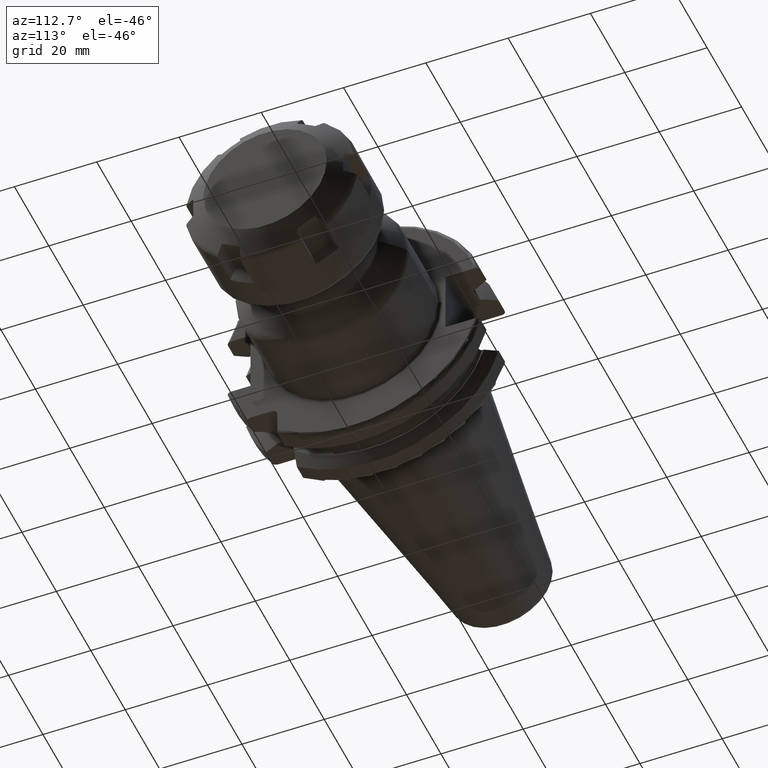
[diagram: clean part render]
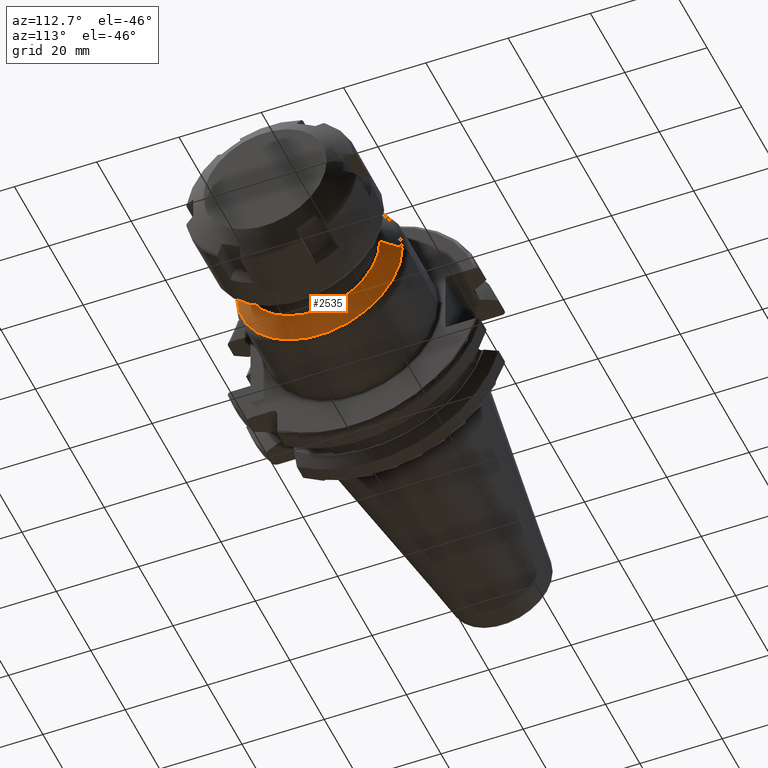
[diagram: same view with one face highlighted and labeled with its STEP entity id]
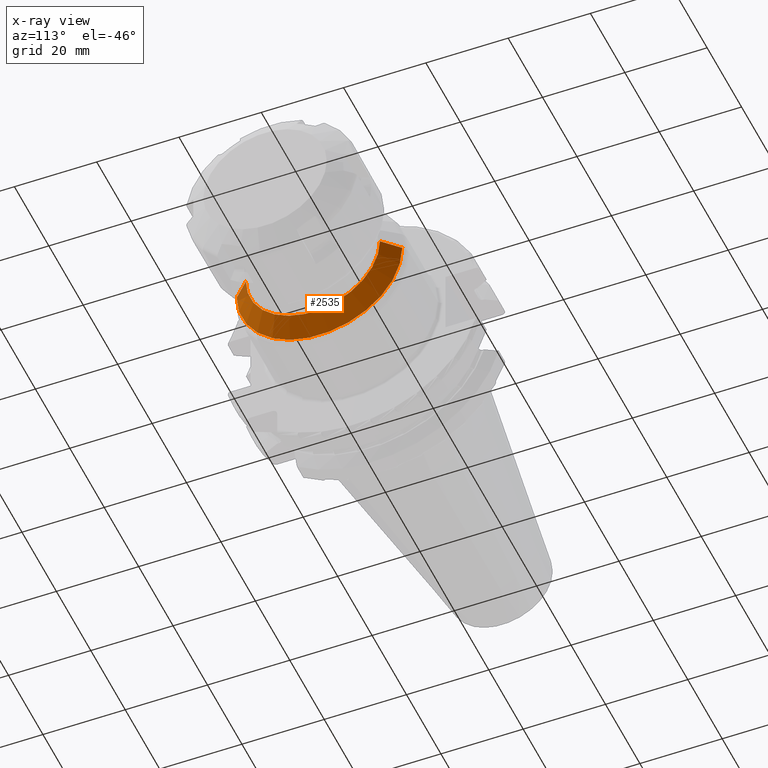
[diagram: x-ray of the same camera — body ghosted, the highlighted face saturated]
A machine part, auxiliary view. The second image highlights one B-rep face of the part: STEP entity #2535.
The next image is the same camera in x-ray: the body ghosted, the highlighted face saturated — about 2% of this face is hidden behind the body in this view.
In plain terms, the highlighted conical surface has half-angle 45 deg.
Its self-contained STEP definition (entity closure, byte-faithful):
#946=CARTESIAN_POINT('',(3.837867965644E1,0.E0,0.E0));
#947=DIRECTION('',(-1.E0,0.E0,0.E0));
#948=DIRECTION('',(0.E0,1.E0,0.E0));
#949=AXIS2_PLACEMENT_3D('',#946,#947,#948);
#951=DIRECTION('',(-7.071067811865E-1,-7.071067811865E-1,2.072784031767E-12));
#952=VECTOR('',#951,5.414213562371E0);
#953=CARTESIAN_POINT('',(4.220710678119E1,-1.629289321881E1,
-1.600441768837E-11));
#954=LINE('',#953,#952);
#955=CARTESIAN_POINT('',(4.220710678119E1,0.E0,0.E0));
#956=DIRECTION('',(1.E0,0.E0,0.E0));
#957=DIRECTION('',(0.E0,-1.E0,0.E0));
#958=AXIS2_PLACEMENT_3D('',#955,#956,#957);
#960=DIRECTION('',(-7.071067811865E-1,7.071067811865E-1,-2.073799293076E-12));
#961=VECTOR('',#960,5.414213562371E0);
#962=CARTESIAN_POINT('',(4.220710678119E1,1.629289321881E1,1.600762423172E-11));
#963=LINE('',#962,#961);
#1495=CARTESIAN_POINT('',(3.837867965644E1,2.012132034356E1,0.E0));
#1496=CARTESIAN_POINT('',(3.837867965644E1,-2.012132034356E1,0.E0));
#1497=VERTEX_POINT('',#1495);
#1498=VERTEX_POINT('',#1496);
#1512=CARTESIAN_POINT('',(4.220710678119E1,-1.629289321881E1,0.E0));
#1513=CARTESIAN_POINT('',(4.220710678119E1,1.629289321881E1,0.E0));
#1514=VERTEX_POINT('',#1512);
#1515=VERTEX_POINT('',#1513);
#2521=CARTESIAN_POINT('',(4.029289321881E1,0.E0,0.E0));
#2522=DIRECTION('',(-1.E0,0.E0,0.E0));
#2523=DIRECTION('',(0.E0,1.E0,0.E0));
#2524=AXIS2_PLACEMENT_3D('',#2521,#2522,#2523);
#2525=CONICAL_SURFACE('',#2524,1.820710678119E1,4.5E1);
#2526=ORIENTED_EDGE('',*,*,#2503,.T.);
#2528=ORIENTED_EDGE('',*,*,#2527,.F.);
#2530=ORIENTED_EDGE('',*,*,#2529,.T.);
#2532=ORIENTED_EDGE('',*,*,#2531,.T.);
#2533=EDGE_LOOP('',(#2526,#2528,#2530,#2532));
#2534=FACE_OUTER_BOUND('',#2533,.F.);
#2535=ADVANCED_FACE('',(#2534),#2525,.T.);
#950=CIRCLE('',#949,2.012132034356E1);
#959=CIRCLE('',#958,1.629289321881E1);
#2503=EDGE_CURVE('',#1497,#1498,#950,.T.);
#2527=EDGE_CURVE('',#1514,#1498,#954,.T.);
#2529=EDGE_CURVE('',#1514,#1515,#959,.T.);
#2531=EDGE_CURVE('',#1515,#1497,#963,.T.);